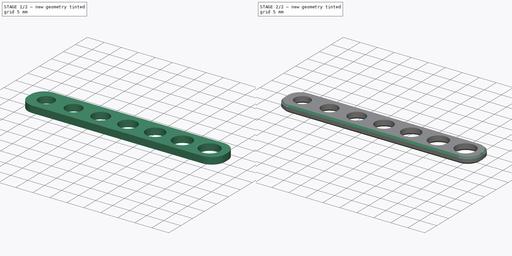
[diagram: build sequence overview — one tinted view per stage of 2, left to right]
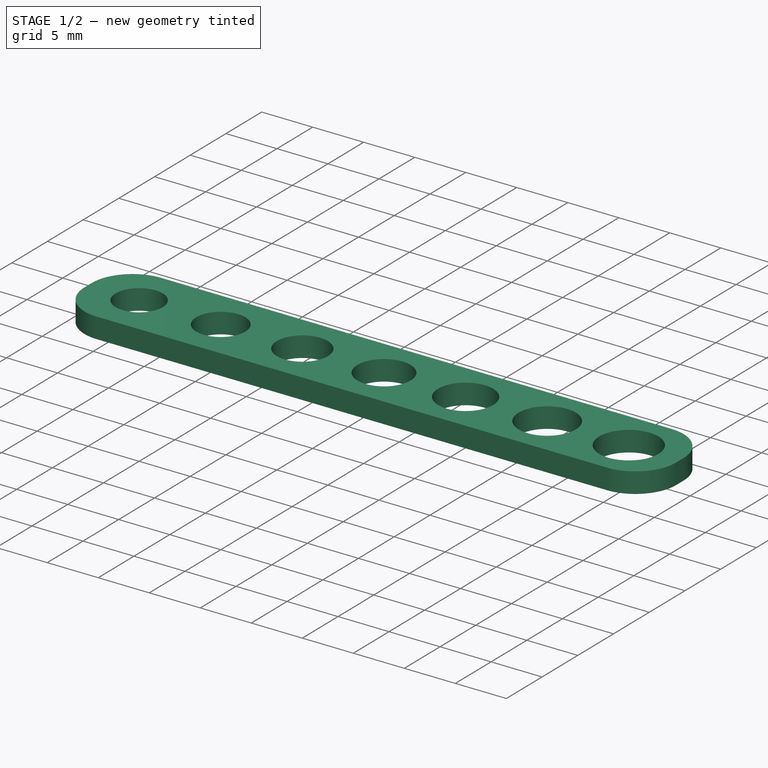
[diagram: stage 1 of 2 — iso view after this stage's code; geometry added in this stage tinted green]
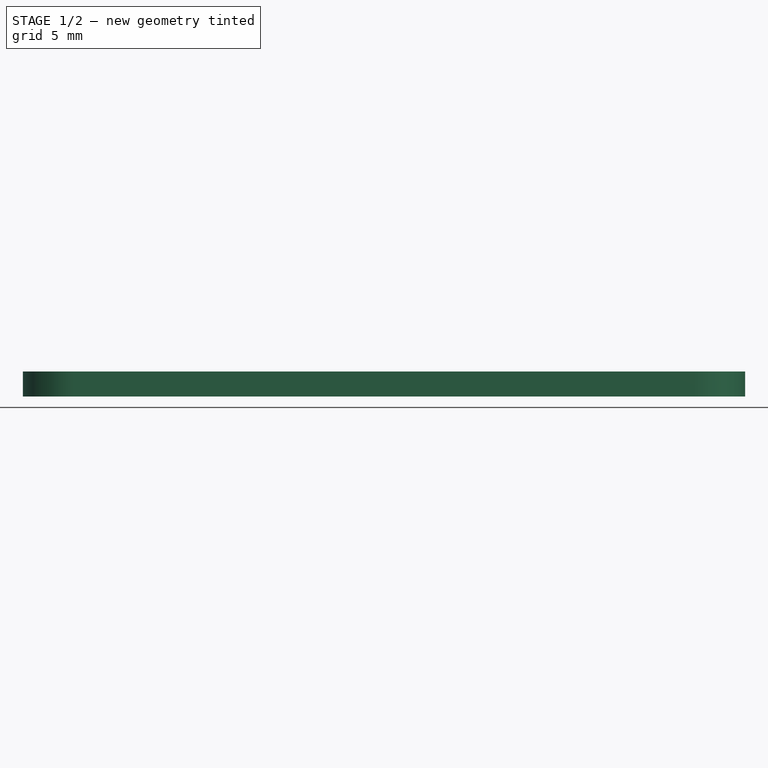
[diagram: stage 1 of 2 — front view after this stage's code; geometry added in this stage tinted green]
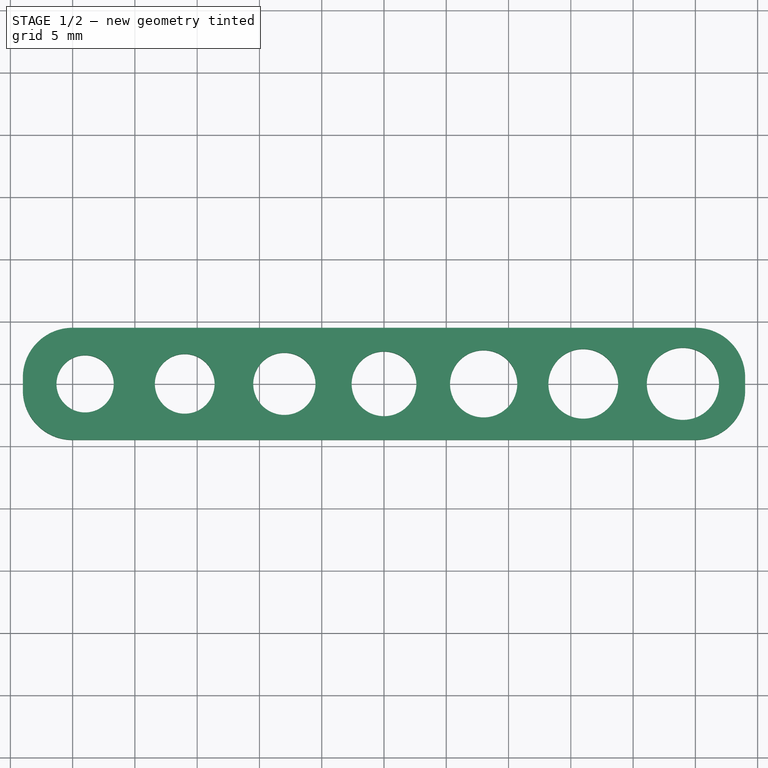
[diagram: stage 1 of 2 — top view after this stage's code; geometry added in this stage tinted green]
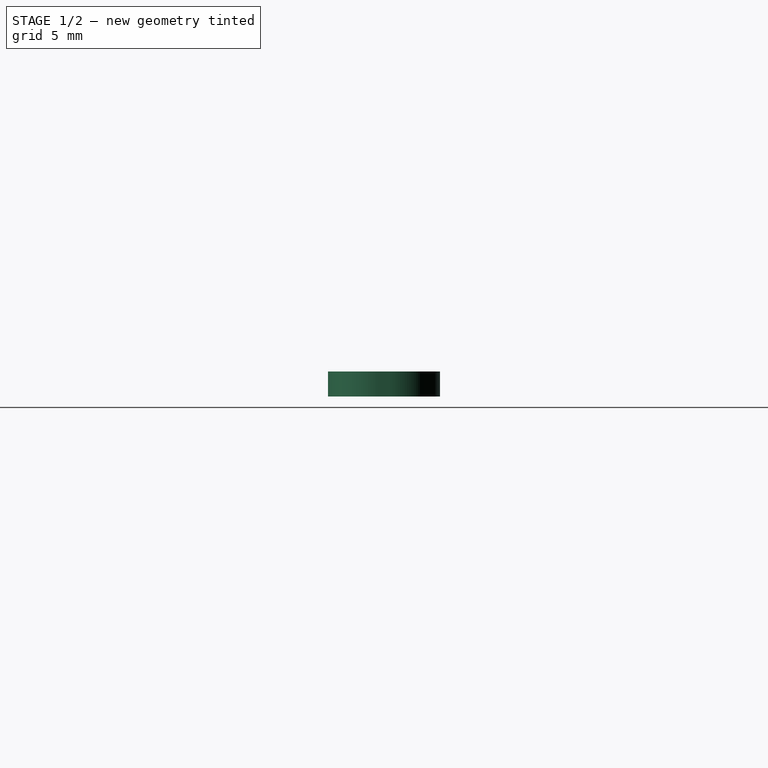
[diagram: stage 1 of 2 — right view after this stage's code; geometry added in this stage tinted green]
FCSTD DOCUMENT  (FreeCAD 0.19R23141 (Git))
Label: test-holes
License: All rights reserved
LicenseURL: http://en.wikipedia.org/wiki/All_rights_reserved
objects: PartDesign::Chamfer×2, Sketcher::SketchObject×1, PartDesign::Pad×1, PartDesign::Fillet×1, PartDesign::Body×1
note: 10 computed .brp shape members not serialized (recipe doc carries the construction recipe); baked Part::Feature solids carry a one-line shape summary decoded from their .brp

FEATURE [Sketcher::SketchObject] Sketch
  MapMode = 5
  Support = -> [XY_Plane]
  sketch-geometry (17):
    g0: LineSegment StartX=-29 StartY=4.5 StartZ=0 EndX=29 EndY=4.5 EndZ=0
    g1: LineSegment StartX=29 StartY=4.5 StartZ=0 EndX=29 EndY=-4.5 EndZ=0
    g2: LineSegment StartX=29 StartY=-4.5 StartZ=0 EndX=-29 EndY=-4.5 EndZ=0
    g3: LineSegment StartX=-29 StartY=-4.5 StartZ=0 EndX=-29 EndY=4.5 EndZ=0
    g4: Circle CenterX=-24 CenterY=0 CenterZ=0 NormalX=0 NormalY=0 NormalZ=1 AngleXU=0 Radius=2.3
    g5: Circle CenterX=-16 CenterY=0 CenterZ=0 NormalX=0 NormalY=0 NormalZ=1 AngleXU=0 Radius=2.4
    g6: Circle CenterX=-8 CenterY=0 CenterZ=0 NormalX=0 NormalY=0 NormalZ=1 AngleXU=0 Radius=2.5
    g7: Circle CenterX=0 CenterY=0 CenterZ=0 NormalX=0 NormalY=0 NormalZ=1 AngleXU=0 Radius=2.6
    g8: Circle CenterX=8 CenterY=0 CenterZ=0 NormalX=0 NormalY=0 NormalZ=1 AngleXU=0 Radius=2.7
    g9: Circle CenterX=16 CenterY=0 CenterZ=0 NormalX=0 NormalY=0 NormalZ=1 AngleXU=0 Radius=2.8
    g10: Circle CenterX=24 CenterY=0 CenterZ=0 NormalX=0 NormalY=0 NormalZ=1 AngleXU=0 Radius=2.9
    g11: LineSegment [constr] StartX=-24 StartY=0 StartZ=0 EndX=-16 EndY=0 EndZ=0
    g12: LineSegment [constr] StartX=-16 StartY=0 StartZ=0 EndX=-8 EndY=0 EndZ=0
    g13: LineSegment [constr] StartX=-8 StartY=0 StartZ=0 EndX=0 EndY=0 EndZ=0
    g14: LineSegment [constr] StartX=0 StartY=0 StartZ=0 EndX=8 EndY=0 EndZ=0
    g15: LineSegment [constr] StartX=8 StartY=0 StartZ=0 EndX=16 EndY=0 EndZ=0
    g16: LineSegment [constr] StartX=16 StartY=0 StartZ=0 EndX=24 EndY=0 EndZ=0
  constraints (43):
    c: Coincident(g0,g1)
    c: Coincident(g1,g2)
    c: Coincident(g2,g3)
    c: Coincident(g3,g0)
    c: Horizontal(g0)
    c: Horizontal(g2)
    c: Vertical(g1)
    c: Vertical(g3)
    c: Symmetric(g0,g1,g-1)
    c: PointOnObject(g4,g-1)
    c: PointOnObject(g5,g-1)
    c: PointOnObject(g6,g-1)
    c: PointOnObject(g7,g-1)
    c: Radius(g4) = 2.3
    c: Radius(g5) = 2.4
    c: Radius(g6) = 2.5
    c: Radius(g7) = 2.6
    c: PointOnObject(g8,g-1)
    c: Radius(g8) = 2.7
    c: PointOnObject(g9,g-1)
    c: Radius(g9) = 2.8
    c: Radius(g10) = 2.9
    c: Coincident(g11,g4)
    c: Coincident(g11,g5)
    c: Coincident(g12,g5)
    c: Coincident(g12,g6)
    c: Coincident(g12,g13)
    c: Coincident(g13,g7)
    c: Coincident(g13,g14)
    c: Coincident(g14,g8)
    c: Coincident(g14,g15)
    c: Coincident(g15,g9)
    c: Coincident(g15,g16)
    c: Coincident(g16,g10)
    c: Equal(g11,g12)
    c: Equal(g12,g13)
    c: Equal(g13,g14)
    c: Equal(g14,g15)
    c: Equal(g15,g16)
    c: DistanceX(g11,g11) = 8
    c: Symmetric(g4,g10,g-2)
    c: DistanceX(g0,g0) = 58
    c: DistanceY(g3,g3) = 9
FEATURE [PartDesign::Pad] Pad
  Direction = (1,1,1)
  Length = 2
  Length2 = 100
  Profile = -> Sketch
  Refine = true
  Type = 0
FEATURE [PartDesign::Fillet] Fillet
  Base = -> Pad [Edge8,Edge5,Edge2,Edge1]
  BaseFeature = -> Pad
  Radius = 4
  Refine = true
  SupportTransform = false
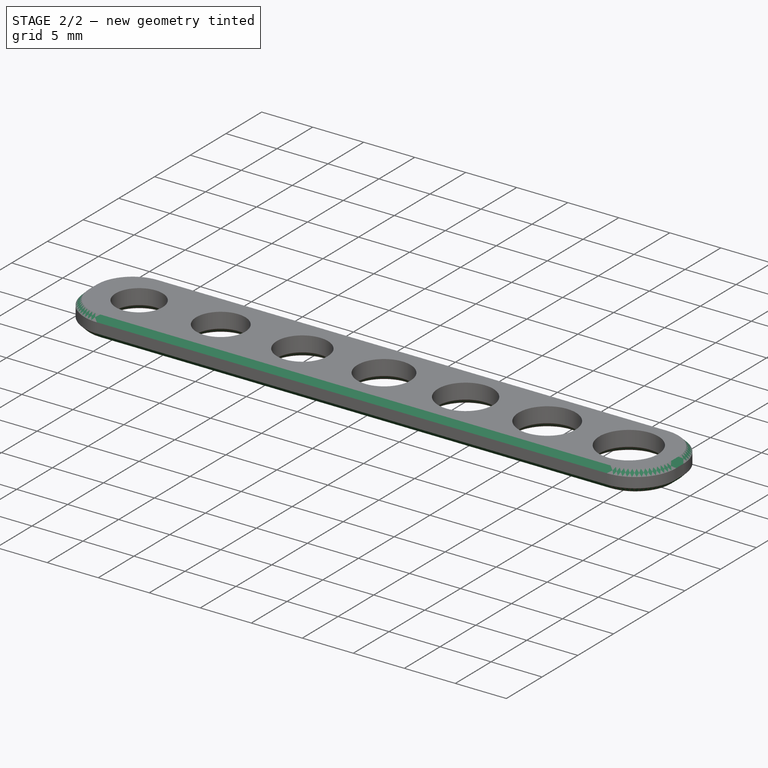
[diagram: stage 2 of 2 — iso view after this stage's code; geometry added in this stage tinted green]
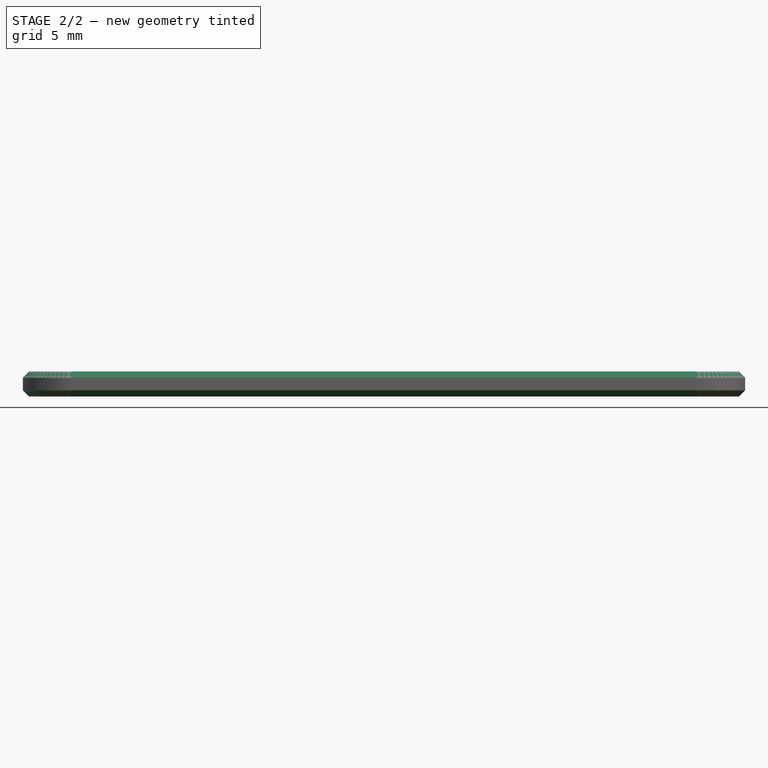
[diagram: stage 2 of 2 — front view after this stage's code; geometry added in this stage tinted green]
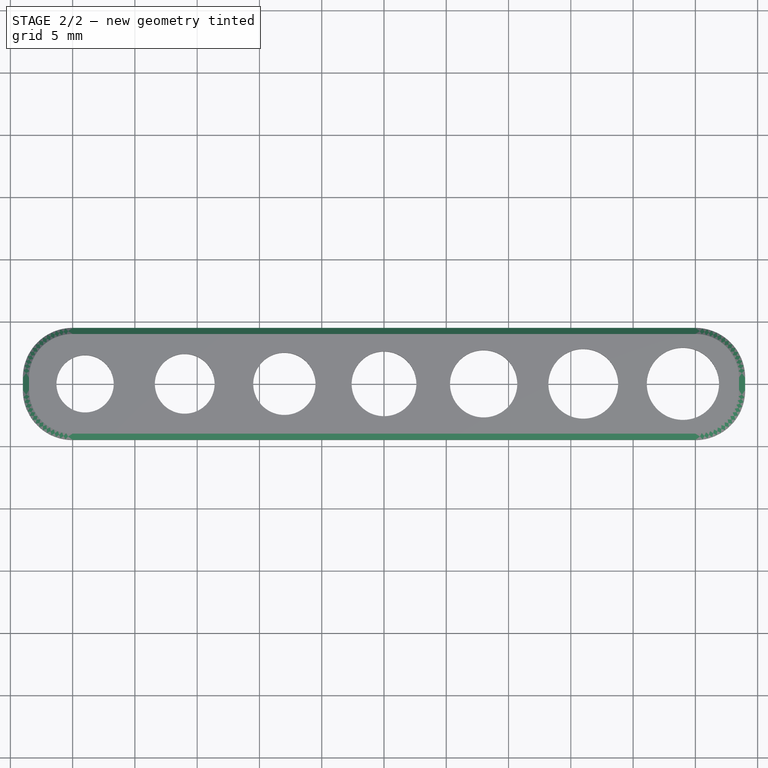
[diagram: stage 2 of 2 — top view after this stage's code; geometry added in this stage tinted green]
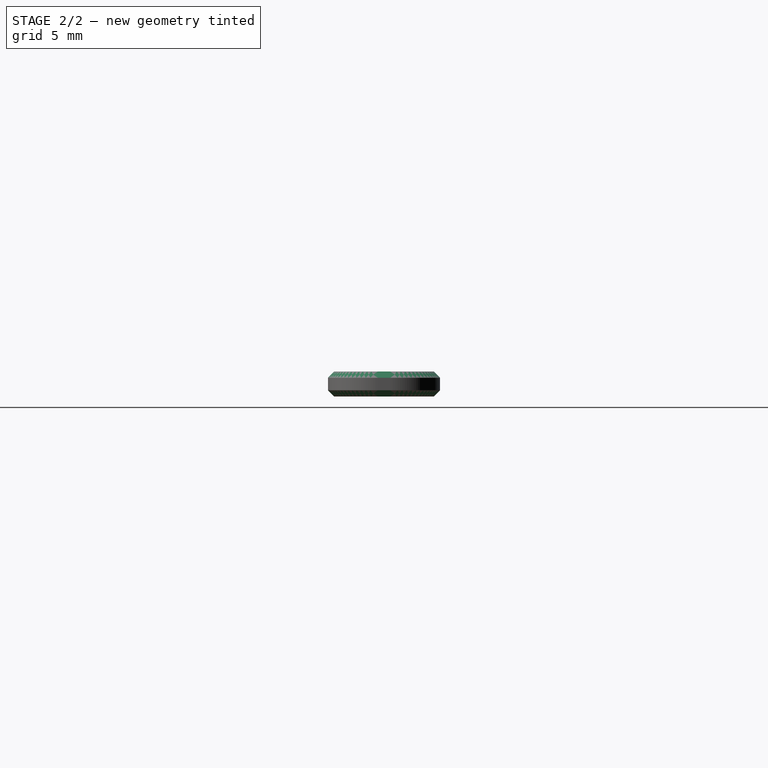
[diagram: stage 2 of 2 — right view after this stage's code; geometry added in this stage tinted green]
FEATURE [PartDesign::Chamfer] Chamfer
  Angle = 45
  Base = -> Fillet [Edge11,Edge18,Edge17,Edge16,Edge15,Edge14,Edge13,Edge12]
  BaseFeature = -> Fillet
  ChamferType = 0
  FlipDirection = false
  Refine = true
  Size = 0.5
  Size2 = 1
  SupportTransform = false
FEATURE [PartDesign::Chamfer] Chamfer001
  Angle = 45
  Base = -> Chamfer [Edge16]
  BaseFeature = -> Chamfer
  ChamferType = 0
  FlipDirection = false
  Refine = true
  Size = 0.5
  Size2 = 1
  SupportTransform = false
FEATURE [PartDesign::Body] Body
  Group = -> [Sketch,Pad,Fillet,Chamfer,Chamfer001]
  Origin = -> Origin
  Tip = -> Chamfer001
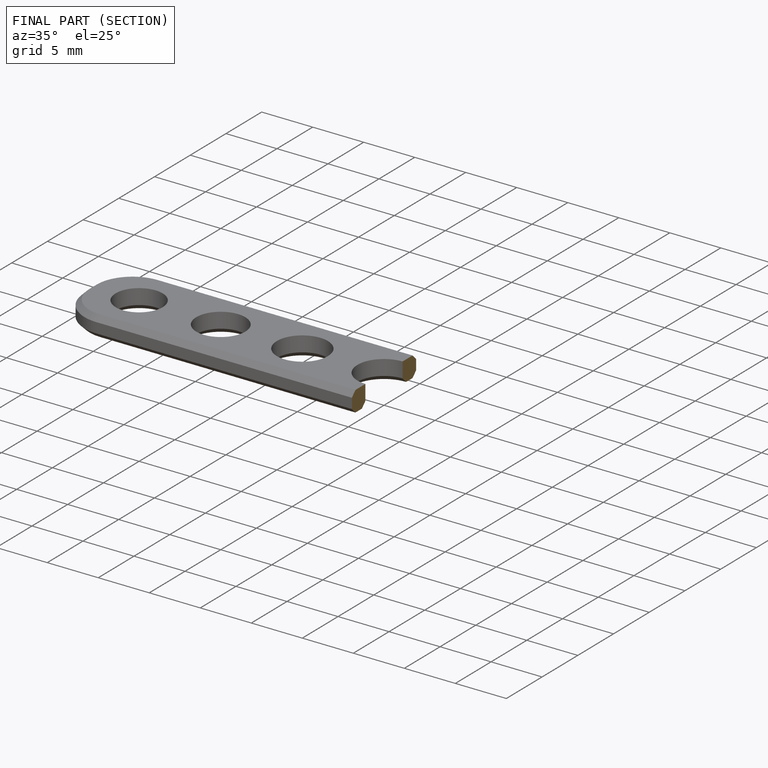
[diagram: finished part — half-section view (interior)]
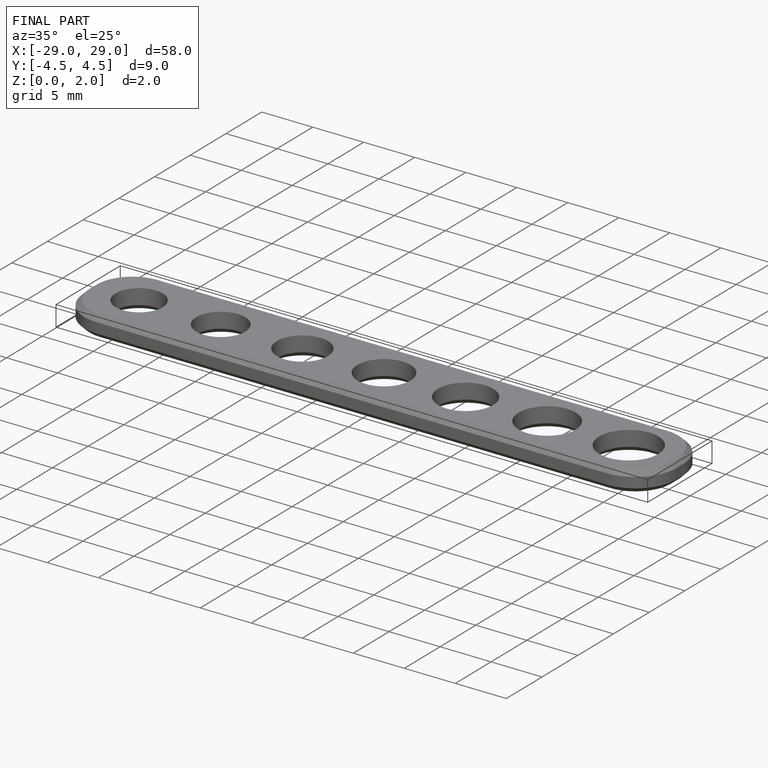
[diagram: finished part — iso view with bounding-box wireframe]
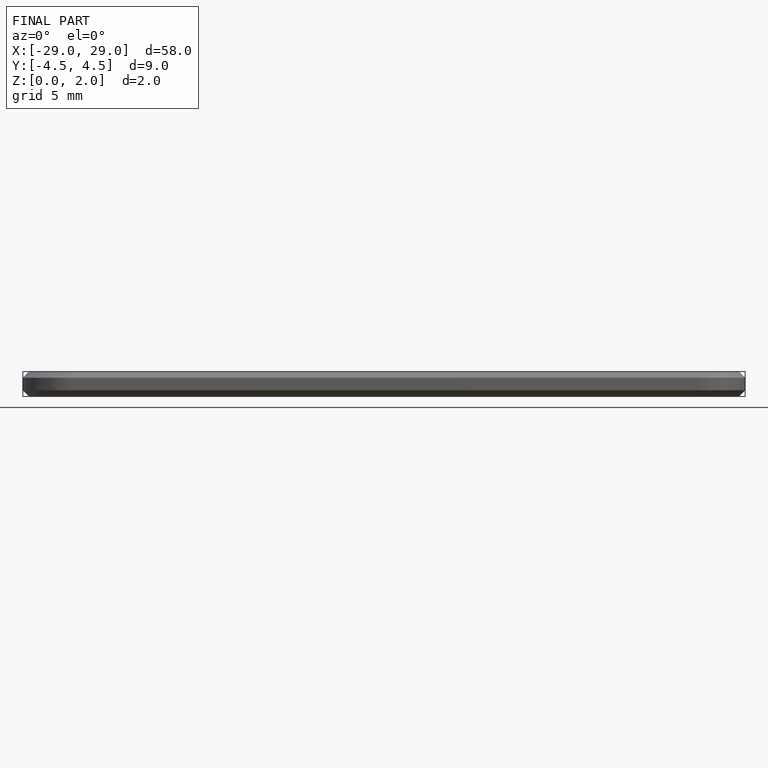
[diagram: finished part — front view with bounding-box wireframe]
